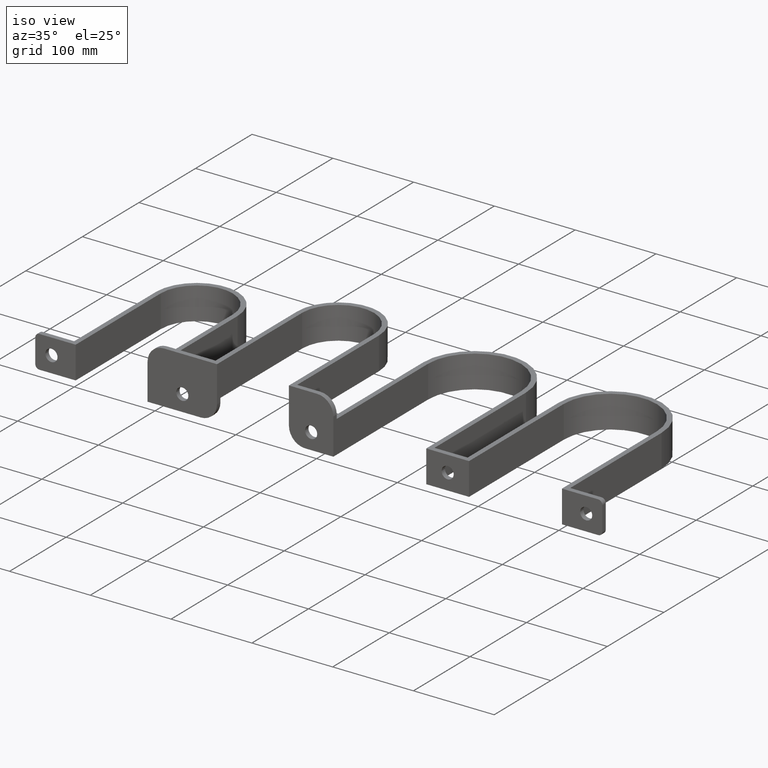
[diagram: clean part render]
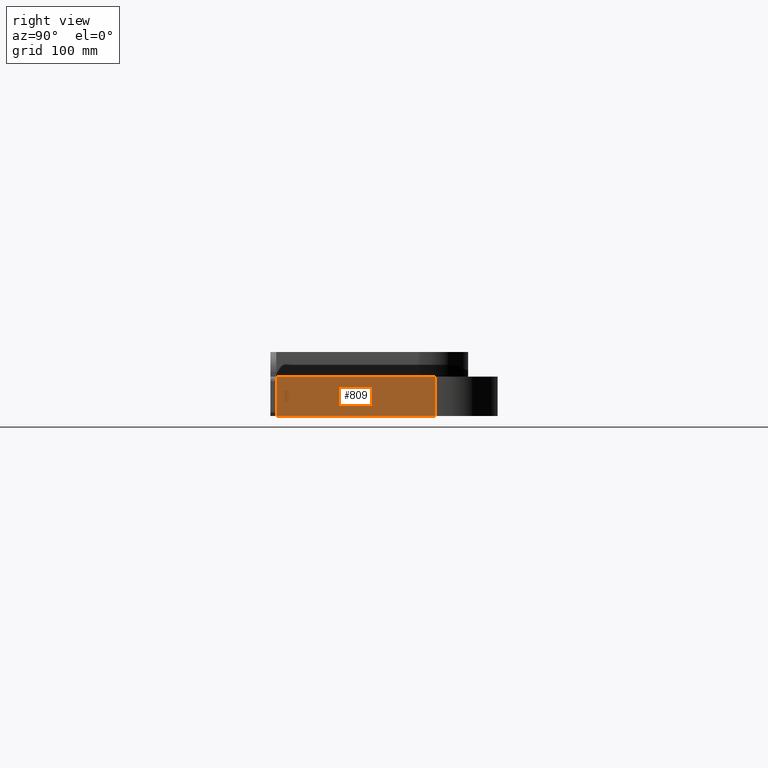
[diagram: tour spotlight — one face highlighted and labeled with its STEP entity id]
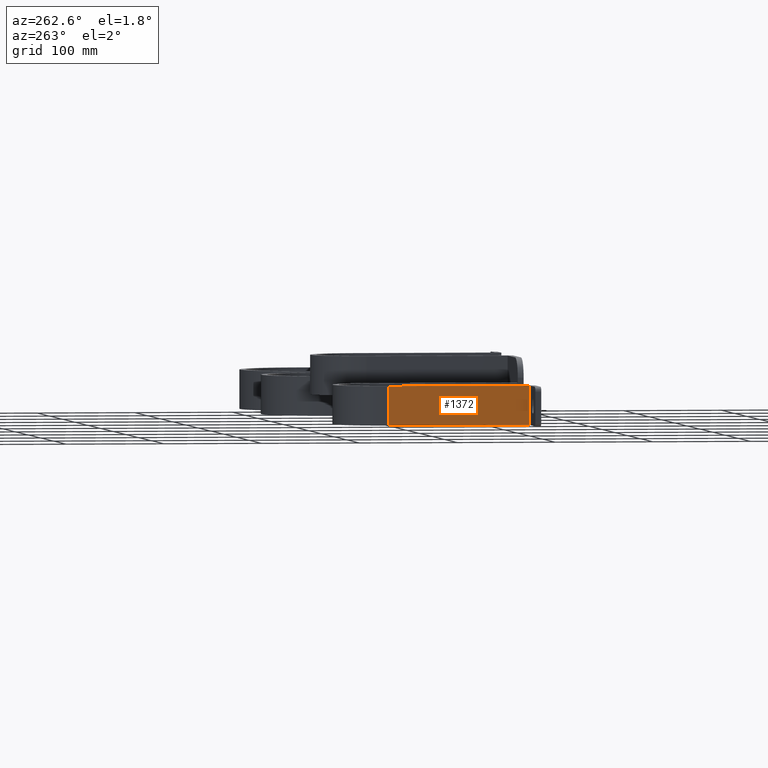
[diagram: tour spotlight — one face highlighted and labeled with its STEP entity id]
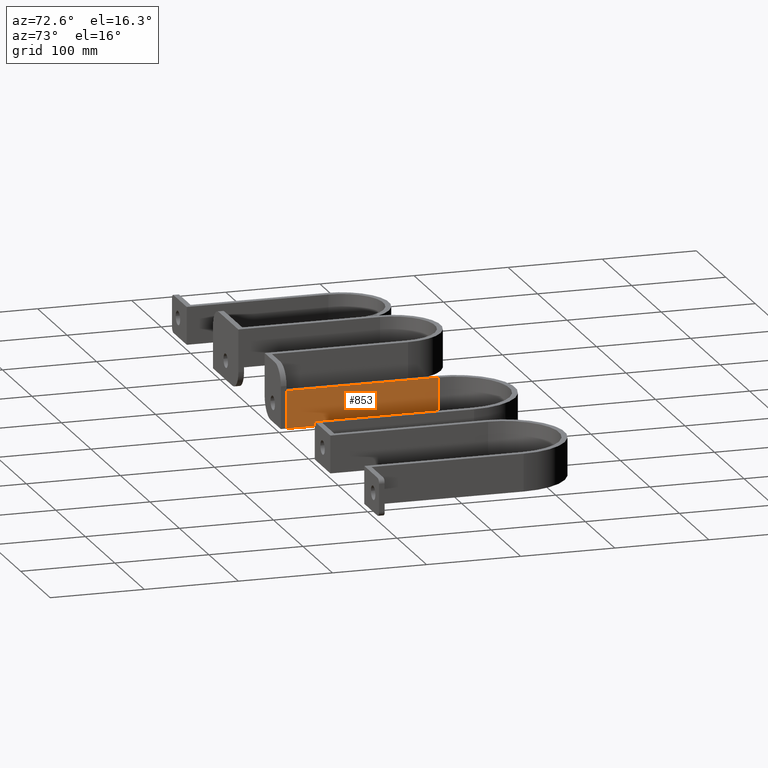
[diagram: tour spotlight — one face highlighted and labeled with its STEP entity id]
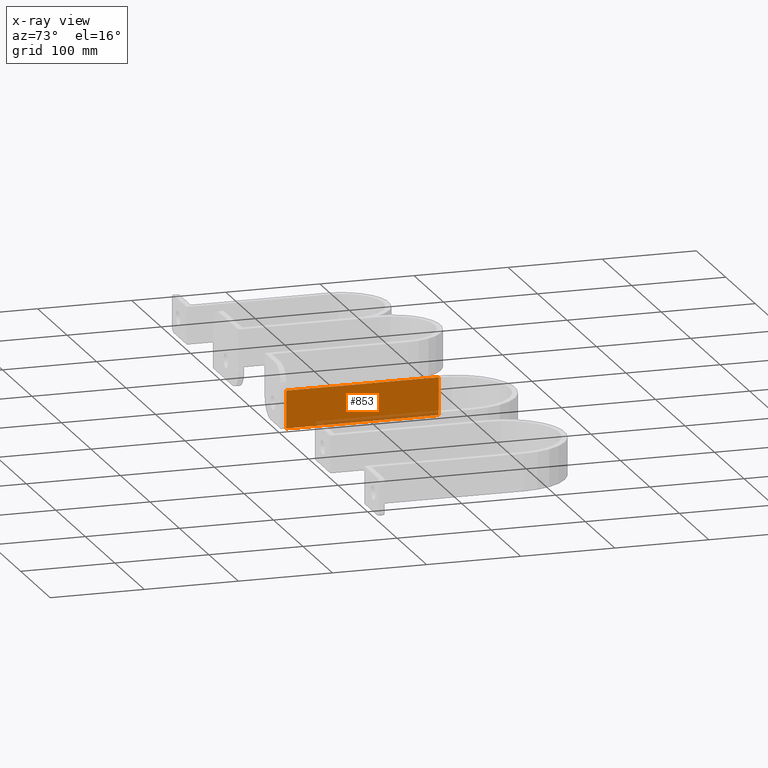
[diagram: x-ray of the same camera — body ghosted, this tour face saturated]
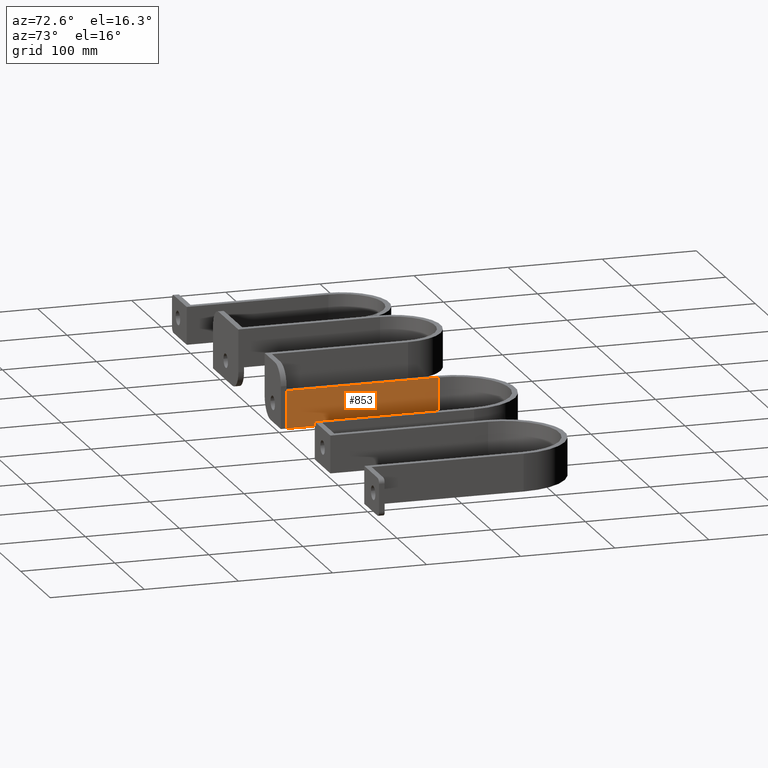
[diagram: tour spotlight — one face highlighted and labeled with its STEP entity id]
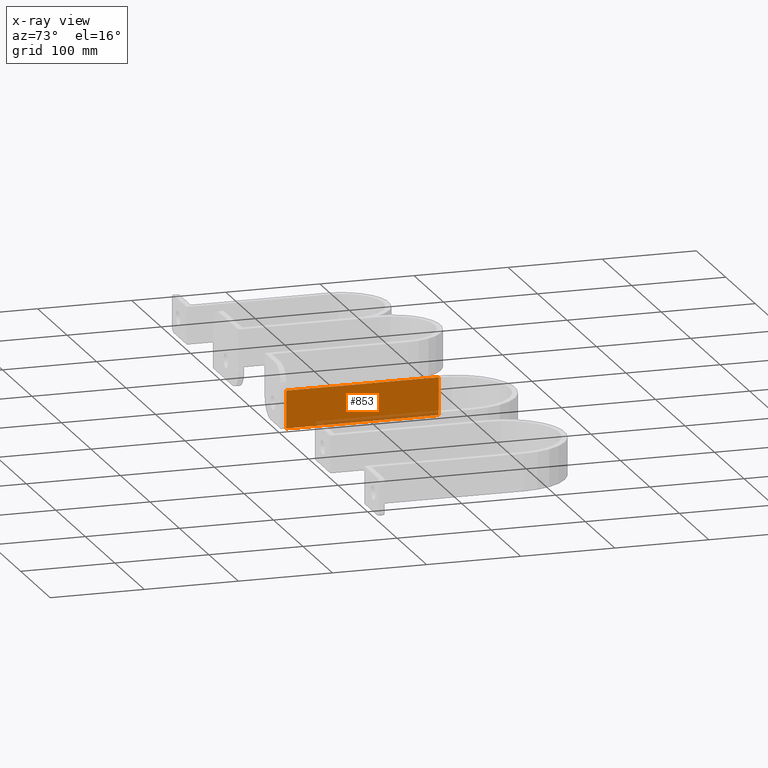
[diagram: x-ray of the same camera — body ghosted, this tour face saturated]
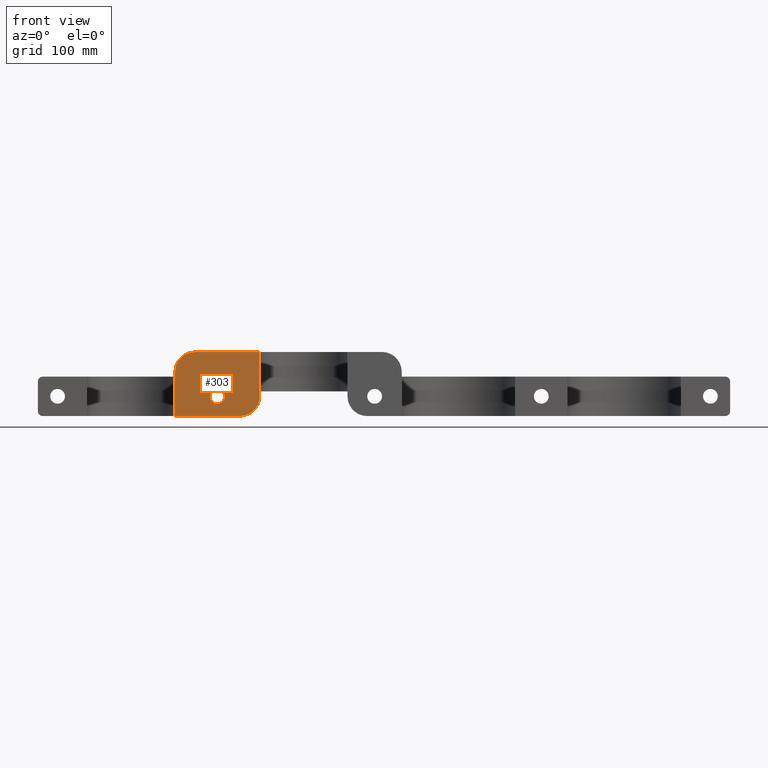
[diagram: tour spotlight — one face highlighted and labeled with its STEP entity id]
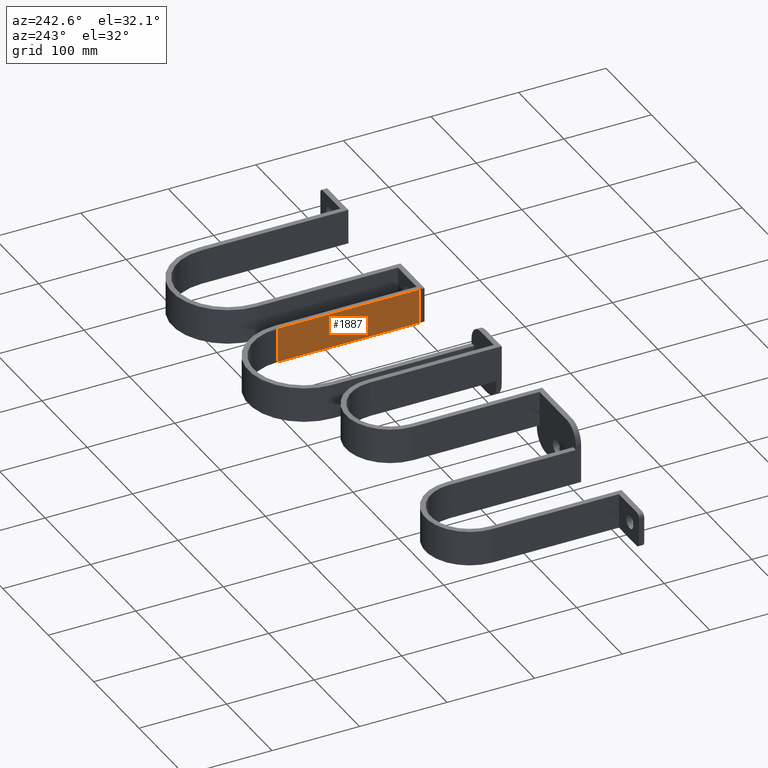
[diagram: tour spotlight — one face highlighted and labeled with its STEP entity id]
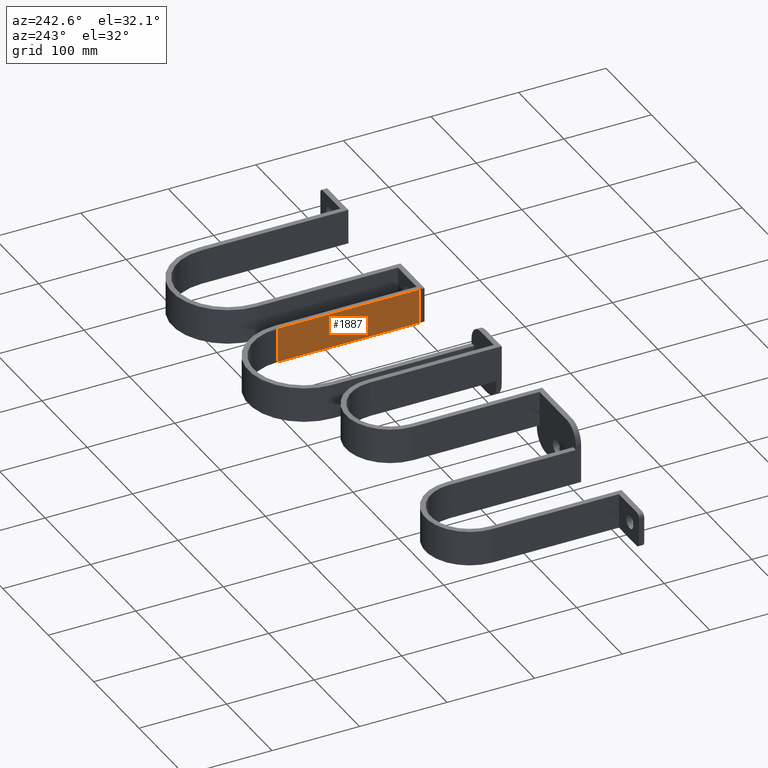
[diagram: tour spotlight — one face highlighted and labeled with its STEP entity id]
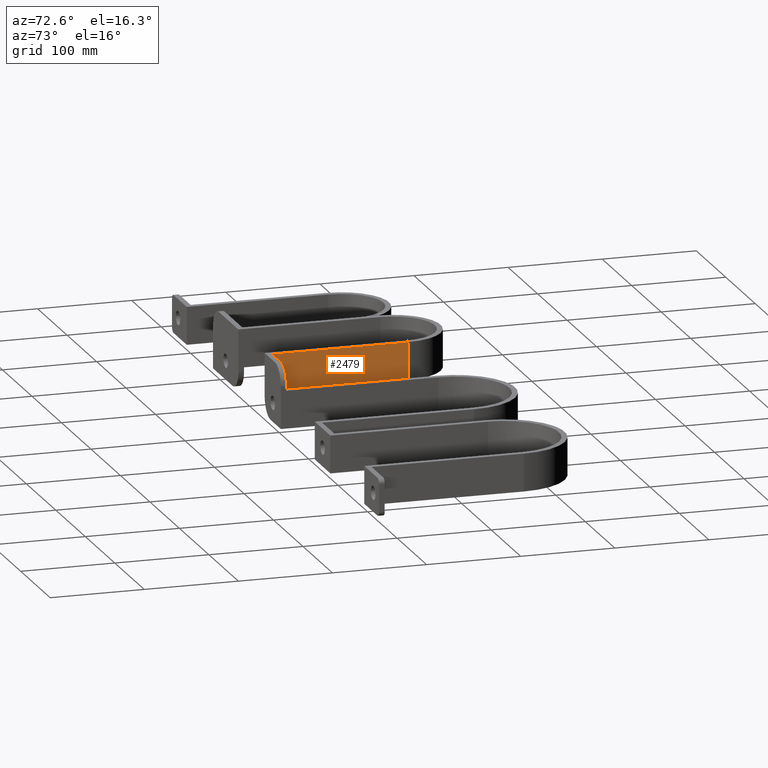
[diagram: tour spotlight — one face highlighted and labeled with its STEP entity id]
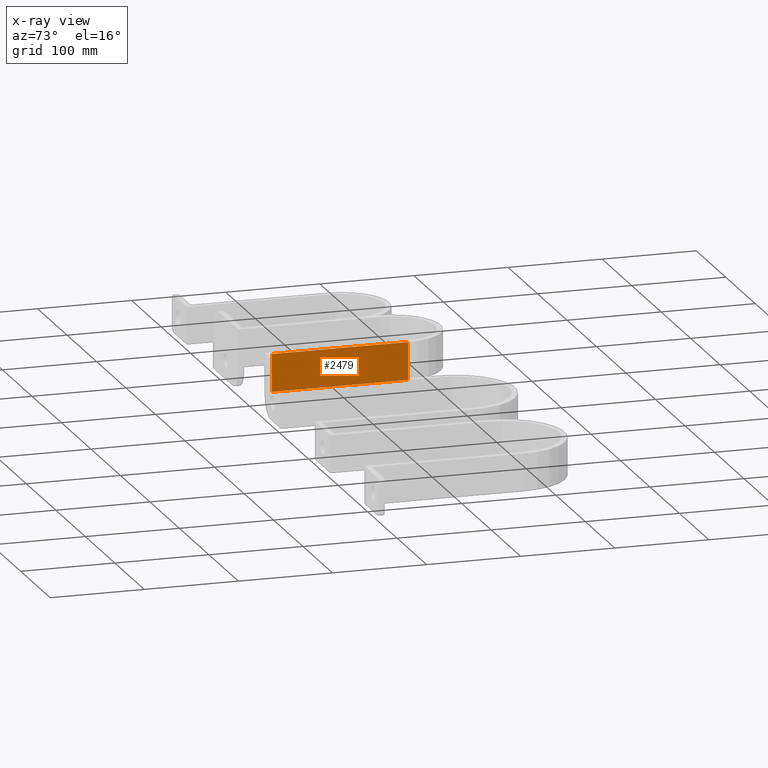
[diagram: x-ray of the same camera — body ghosted, this tour face saturated]
A machine part: a face-by-face anatomy tour. The part has 104 B-rep faces; the first image is the clean iso view, then the 8 largest visible faces are spotlighted one at a time (largest first), each with its STEP entity span.

Face 1 — right view, entity #809. In plain terms, the highlighted planar face has unit normal (1, 0, 0).
Definition (entity closure, byte-faithful):
#30 = CARTESIAN_POINT ( 'NONE',  ( 63.50000000000001421, 5.999999999999977796, 20.00000000000000000 ) ) ;
#70 = CARTESIAN_POINT ( 'NONE',  ( 63.50000000000001421, 167.4999999999999716, 20.00000000000000000 ) ) ;
#159 = VERTEX_POINT ( 'NONE', #30 ) ;
#161 = EDGE_CURVE ( 'NONE', #2232, #1912, #1258, .T. ) ;
#185 = DIRECTION ( 'NONE',  ( -0.000000000000000000, -0.000000000000000000, -1.000000000000000000 ) ) ;
#245 = DIRECTION ( 'NONE',  ( 1.000000000000000000, 0.000000000000000000, -0.000000000000000000 ) ) ;
#266 = DIRECTION ( 'NONE',  ( -0.000000000000000000, 0.000000000000000000, -1.000000000000000000 ) ) ;
#505 = CARTESIAN_POINT ( 'NONE',  ( 63.50000000000001421, 167.4999999999999716, -20.00000000000000000 ) ) ;
#549 = LINE ( 'NONE', #2039, #1361 ) ;
#637 = CARTESIAN_POINT ( 'NONE',  ( 63.50000000000001421, 167.4999999999999716, -20.00000000000000000 ) ) ;
#659 = ORIENTED_EDGE ( 'NONE', *, *, #1473, .F. ) ;
#809 = ADVANCED_FACE ( 'NONE', ( #2114 ), #1329, .T. ) ;
#1148 = VECTOR ( 'NONE', #185, 1000.000000000000000 ) ;
#1207 = CARTESIAN_POINT ( 'NONE',  ( 63.50000000000001421, 167.4999999999999716, 20.00000000000000000 ) ) ;
#1258 = LINE ( 'NONE', #637, #1809 ) ;
#1329 = PLANE ( 'NONE',  #2661 ) ;
#1330 = ORIENTED_EDGE ( 'NONE', *, *, #1430, .T. ) ;
#1361 = VECTOR ( 'NONE', #1626, 1000.000000000000000 ) ;
#1400 = LINE ( 'NONE', #1207, #1148 ) ;
#1430 = EDGE_CURVE ( 'NONE', #2361, #159, #549, .T. ) ;
#1473 = EDGE_CURVE ( 'NONE', #2361, #2232, #1400, .T. ) ;
#1517 = ORIENTED_EDGE ( 'NONE', *, *, #161, .F. ) ;
#1587 = VECTOR ( 'NONE', #1657, 1000.000000000000000 ) ;
#1626 = DIRECTION ( 'NONE',  ( -0.000000000000000000, -1.000000000000000000, 0.000000000000000000 ) ) ;
#1657 = DIRECTION ( 'NONE',  ( -0.000000000000000000, -0.000000000000000000, -1.000000000000000000 ) ) ;
#1696 = DIRECTION ( 'NONE',  ( -0.000000000000000000, -1.000000000000000000, 0.000000000000000000 ) ) ;
#1809 = VECTOR ( 'NONE', #1696, 1000.000000000000000 ) ;
#1858 = CARTESIAN_POINT ( 'NONE',  ( 63.50000000000001421, 167.4999999999999716, 20.00000000000000000 ) ) ;
#1912 = VERTEX_POINT ( 'NONE', #2159 ) ;
#1930 = EDGE_CURVE ( 'NONE', #159, #1912, #2539, .T. ) ;
#1964 = ORIENTED_EDGE ( 'NONE', *, *, #1930, .T. ) ;
#2039 = CARTESIAN_POINT ( 'NONE',  ( 63.50000000000001421, 167.4999999999999716, 20.00000000000000000 ) ) ;
#2114 = FACE_OUTER_BOUND ( 'NONE', #2474, .T. ) ;
#2159 = CARTESIAN_POINT ( 'NONE',  ( 63.50000000000001421, 5.999999999999977796, -20.00000000000000000 ) ) ;
#2232 = VERTEX_POINT ( 'NONE', #505 ) ;
#2261 = CARTESIAN_POINT ( 'NONE',  ( 63.50000000000001421, 5.999999999999977796, 20.00000000000000000 ) ) ;
#2361 = VERTEX_POINT ( 'NONE', #1858 ) ;
#2474 = EDGE_LOOP ( 'NONE', ( #1517, #659, #1330, #1964 ) ) ;
#2539 = LINE ( 'NONE', #2261, #1587 ) ;
#2661 = AXIS2_PLACEMENT_3D ( 'NONE', #70, #245, #266 ) ;

Face 2 — auxiliary view, entity #1372. In plain terms, the highlighted planar face has unit normal (-1, 0, 0).
Definition (entity closure, byte-faithful):
#37 = ORIENTED_EDGE ( 'NONE', *, *, #922, .T. ) ;
#40 = CARTESIAN_POINT ( 'NONE',  ( -50.49999999999999289, 5.999999999999985789, -20.00000000000000000 ) ) ;
#62 = LINE ( 'NONE', #40, #1724 ) ;
#272 = DIRECTION ( 'NONE',  ( -1.000000000000000000, -0.000000000000000000, 0.000000000000000000 ) ) ;
#276 = EDGE_CURVE ( 'NONE', #1532, #1671, #842, .T. ) ;
#404 = VECTOR ( 'NONE', #2420, 1000.000000000000000 ) ;
#416 = DIRECTION ( 'NONE',  ( -0.000000000000000000, -0.000000000000000000, -1.000000000000000000 ) ) ;
#493 = VECTOR ( 'NONE', #416, 1000.000000000000000 ) ;
#504 = CARTESIAN_POINT ( 'NONE',  ( -50.49999999999999289, 5.999999999999985789, 20.00000000000000000 ) ) ;
#600 = CARTESIAN_POINT ( 'NONE',  ( -50.49999999999999289, 5.999999999999985789, 20.00000000000000000 ) ) ;
#777 = ORIENTED_EDGE ( 'NONE', *, *, #2170, .T. ) ;
#830 = PLANE ( 'NONE',  #2399 ) ;
#839 = VECTOR ( 'NONE', #2141, 1000.000000000000000 ) ;
#842 = LINE ( 'NONE', #1684, #493 ) ;
#922 = EDGE_CURVE ( 'NONE', #1532, #2486, #1929, .T. ) ;
#1050 = EDGE_CURVE ( 'NONE', #1671, #1923, #62, .T. ) ;
#1372 = ADVANCED_FACE ( 'NONE', ( #1436 ), #830, .T. ) ;
#1396 = LINE ( 'NONE', #1623, #404 ) ;
#1436 = FACE_OUTER_BOUND ( 'NONE', #2577, .T. ) ;
#1470 = CARTESIAN_POINT ( 'NONE',  ( -50.49999999999999289, 150.5000000000000284, 20.00000000000000000 ) ) ;
#1484 = CARTESIAN_POINT ( 'NONE',  ( -50.49999999999999289, 5.999999999999985789, 20.00000000000000000 ) ) ;
#1532 = VERTEX_POINT ( 'NONE', #1484 ) ;
#1619 = CARTESIAN_POINT ( 'NONE',  ( -50.49999999999999289, 5.999999999999985789, -20.00000000000000000 ) ) ;
#1623 = CARTESIAN_POINT ( 'NONE',  ( -50.49999999999999289, 150.5000000000000284, 20.00000000000000000 ) ) ;
#1671 = VERTEX_POINT ( 'NONE', #1619 ) ;
#1684 = CARTESIAN_POINT ( 'NONE',  ( -50.49999999999999289, 5.999999999999985789, 20.00000000000000000 ) ) ;
#1692 = ORIENTED_EDGE ( 'NONE', *, *, #276, .F. ) ;
#1724 = VECTOR ( 'NONE', #2555, 1000.000000000000000 ) ;
#1923 = VERTEX_POINT ( 'NONE', #2533 ) ;
#1929 = LINE ( 'NONE', #504, #839 ) ;
#2018 = ORIENTED_EDGE ( 'NONE', *, *, #1050, .F. ) ;
#2141 = DIRECTION ( 'NONE',  ( -0.000000000000000000, 1.000000000000000000, 0.000000000000000000 ) ) ;
#2170 = EDGE_CURVE ( 'NONE', #2486, #1923, #1396, .T. ) ;
#2258 = DIRECTION ( 'NONE',  ( 0.000000000000000000, 0.000000000000000000, 1.000000000000000000 ) ) ;
#2399 = AXIS2_PLACEMENT_3D ( 'NONE', #600, #272, #2258 ) ;
#2420 = DIRECTION ( 'NONE',  ( -0.000000000000000000, -0.000000000000000000, -1.000000000000000000 ) ) ;
#2486 = VERTEX_POINT ( 'NONE', #1470 ) ;
#2533 = CARTESIAN_POINT ( 'NONE',  ( -50.49999999999999289, 150.5000000000000284, -20.00000000000000000 ) ) ;
#2555 = DIRECTION ( 'NONE',  ( -0.000000000000000000, 1.000000000000000000, 0.000000000000000000 ) ) ;
#2577 = EDGE_LOOP ( 'NONE', ( #2018, #1692, #37, #777 ) ) ;

Face 3 — auxiliary view, entity #853. An x-ray twin of the same camera follows (body ghosted, this face saturated) — the face is partly hidden behind the body. In plain terms, the highlighted planar face has unit normal (-1, 0, 0).
Definition (entity closure, byte-faithful):
#92 = ORIENTED_EDGE ( 'NONE', *, *, #2556, .F. ) ;
#99 = VERTEX_POINT ( 'NONE', #1691 ) ;
#151 = LINE ( 'NONE', #1690, #2109 ) ;
#242 = VECTOR ( 'NONE', #2103, 1000.000000000000000 ) ;
#327 = PLANE ( 'NONE',  #1443 ) ;
#408 = LINE ( 'NONE', #1252, #671 ) ;
#654 = CARTESIAN_POINT ( 'NONE',  ( -57.50000000000000711, 167.4999999999999716, 20.00000000000000000 ) ) ;
#671 = VECTOR ( 'NONE', #1040, 1000.000000000000000 ) ;
#683 = VERTEX_POINT ( 'NONE', #654 ) ;
#735 = ORIENTED_EDGE ( 'NONE', *, *, #2651, .F. ) ;
#835 = CARTESIAN_POINT ( 'NONE',  ( -57.50000000000000711, 5.999999999999970690, 20.00000000000000000 ) ) ;
#853 = ADVANCED_FACE ( 'NONE', ( #1630 ), #327, .F. ) ;
#994 = CARTESIAN_POINT ( 'NONE',  ( -57.50000000000000711, 167.4999999999999716, -20.00000000000000000 ) ) ;
#1040 = DIRECTION ( 'NONE',  ( -0.000000000000000000, -0.000000000000000000, -1.000000000000000000 ) ) ;
#1223 = EDGE_CURVE ( 'NONE', #1900, #2547, #151, .T. ) ;
#1252 = CARTESIAN_POINT ( 'NONE',  ( -57.50000000000000711, 5.999999999999970690, 20.00000000000000000 ) ) ;
#1266 = DIRECTION ( 'NONE',  ( 0.000000000000000000, 0.000000000000000000, 1.000000000000000000 ) ) ;
#1301 = EDGE_LOOP ( 'NONE', ( #2512, #735, #92, #2038 ) ) ;
#1339 = EDGE_CURVE ( 'NONE', #99, #1900, #408, .T. ) ;
#1442 = DIRECTION ( 'NONE',  ( 0.000000000000000000, 1.000000000000000000, 0.000000000000000000 ) ) ;
#1443 = AXIS2_PLACEMENT_3D ( 'NONE', #835, #1673, #1266 ) ;
#1452 = LINE ( 'NONE', #1636, #1859 ) ;
#1630 = FACE_OUTER_BOUND ( 'NONE', #1301, .T. ) ;
#1636 = CARTESIAN_POINT ( 'NONE',  ( -57.50000000000000711, 5.999999999999970690, 20.00000000000000000 ) ) ;
#1673 = DIRECTION ( 'NONE',  ( -1.000000000000000000, 0.000000000000000000, 0.000000000000000000 ) ) ;
#1690 = CARTESIAN_POINT ( 'NONE',  ( -57.50000000000000711, 5.999999999999970690, -20.00000000000000000 ) ) ;
#1691 = CARTESIAN_POINT ( 'NONE',  ( -57.50000000000000711, 5.999999999999970690, 20.00000000000000000 ) ) ;
#1859 = VECTOR ( 'NONE', #2459, 1000.000000000000000 ) ;
#1900 = VERTEX_POINT ( 'NONE', #2234 ) ;
#2038 = ORIENTED_EDGE ( 'NONE', *, *, #1339, .T. ) ;
#2103 = DIRECTION ( 'NONE',  ( -0.000000000000000000, -0.000000000000000000, -1.000000000000000000 ) ) ;
#2109 = VECTOR ( 'NONE', #1442, 1000.000000000000000 ) ;
#2234 = CARTESIAN_POINT ( 'NONE',  ( -57.50000000000000711, 5.999999999999970690, -20.00000000000000000 ) ) ;
#2314 = CARTESIAN_POINT ( 'NONE',  ( -57.50000000000000711, 167.4999999999999716, 20.00000000000000000 ) ) ;
#2459 = DIRECTION ( 'NONE',  ( 0.000000000000000000, 1.000000000000000000, 0.000000000000000000 ) ) ;
#2512 = ORIENTED_EDGE ( 'NONE', *, *, #1223, .T. ) ;
#2547 = VERTEX_POINT ( 'NONE', #994 ) ;
#2556 = EDGE_CURVE ( 'NONE', #99, #683, #1452, .T. ) ;
#2605 = LINE ( 'NONE', #2314, #242 ) ;
#2651 = EDGE_CURVE ( 'NONE', #683, #2547, #2605, .T. ) ;

Face 4 — auxiliary view, entity #853. An x-ray twin of the same camera follows (body ghosted, this face saturated) — the face is partly hidden behind the body. In plain terms, the highlighted planar face has unit normal (-1, 0, 0).
Definition (entity closure, byte-faithful):
#92 = ORIENTED_EDGE ( 'NONE', *, *, #2556, .F. ) ;
#99 = VERTEX_POINT ( 'NONE', #1691 ) ;
#151 = LINE ( 'NONE', #1690, #2109 ) ;
#242 = VECTOR ( 'NONE', #2103, 1000.000000000000000 ) ;
#327 = PLANE ( 'NONE',  #1443 ) ;
#408 = LINE ( 'NONE', #1252, #671 ) ;
#654 = CARTESIAN_POINT ( 'NONE',  ( -57.50000000000000711, 167.4999999999999716, 20.00000000000000000 ) ) ;
#671 = VECTOR ( 'NONE', #1040, 1000.000000000000000 ) ;
#683 = VERTEX_POINT ( 'NONE', #654 ) ;
#735 = ORIENTED_EDGE ( 'NONE', *, *, #2651, .F. ) ;
#835 = CARTESIAN_POINT ( 'NONE',  ( -57.50000000000000711, 5.999999999999970690, 20.00000000000000000 ) ) ;
#853 = ADVANCED_FACE ( 'NONE', ( #1630 ), #327, .F. ) ;
#994 = CARTESIAN_POINT ( 'NONE',  ( -57.50000000000000711, 167.4999999999999716, -20.00000000000000000 ) ) ;
#1040 = DIRECTION ( 'NONE',  ( -0.000000000000000000, -0.000000000000000000, -1.000000000000000000 ) ) ;
#1223 = EDGE_CURVE ( 'NONE', #1900, #2547, #151, .T. ) ;
#1252 = CARTESIAN_POINT ( 'NONE',  ( -57.50000000000000711, 5.999999999999970690, 20.00000000000000000 ) ) ;
#1266 = DIRECTION ( 'NONE',  ( 0.000000000000000000, 0.000000000000000000, 1.000000000000000000 ) ) ;
#1301 = EDGE_LOOP ( 'NONE', ( #2512, #735, #92, #2038 ) ) ;
#1339 = EDGE_CURVE ( 'NONE', #99, #1900, #408, .T. ) ;
#1442 = DIRECTION ( 'NONE',  ( 0.000000000000000000, 1.000000000000000000, 0.000000000000000000 ) ) ;
#1443 = AXIS2_PLACEMENT_3D ( 'NONE', #835, #1673, #1266 ) ;
#1452 = LINE ( 'NONE', #1636, #1859 ) ;
#1630 = FACE_OUTER_BOUND ( 'NONE', #1301, .T. ) ;
#1636 = CARTESIAN_POINT ( 'NONE',  ( -57.50000000000000711, 5.999999999999970690, 20.00000000000000000 ) ) ;
#1673 = DIRECTION ( 'NONE',  ( -1.000000000000000000, 0.000000000000000000, 0.000000000000000000 ) ) ;
#1690 = CARTESIAN_POINT ( 'NONE',  ( -57.50000000000000711, 5.999999999999970690, -20.00000000000000000 ) ) ;
#1691 = CARTESIAN_POINT ( 'NONE',  ( -57.50000000000000711, 5.999999999999970690, 20.00000000000000000 ) ) ;
#1859 = VECTOR ( 'NONE', #2459, 1000.000000000000000 ) ;
#1900 = VERTEX_POINT ( 'NONE', #2234 ) ;
#2038 = ORIENTED_EDGE ( 'NONE', *, *, #1339, .T. ) ;
#2103 = DIRECTION ( 'NONE',  ( -0.000000000000000000, -0.000000000000000000, -1.000000000000000000 ) ) ;
#2109 = VECTOR ( 'NONE', #1442, 1000.000000000000000 ) ;
#2234 = CARTESIAN_POINT ( 'NONE',  ( -57.50000000000000711, 5.999999999999970690, -20.00000000000000000 ) ) ;
#2314 = CARTESIAN_POINT ( 'NONE',  ( -57.50000000000000711, 167.4999999999999716, 20.00000000000000000 ) ) ;
#2459 = DIRECTION ( 'NONE',  ( 0.000000000000000000, 1.000000000000000000, 0.000000000000000000 ) ) ;
#2512 = ORIENTED_EDGE ( 'NONE', *, *, #1223, .T. ) ;
#2547 = VERTEX_POINT ( 'NONE', #994 ) ;
#2556 = EDGE_CURVE ( 'NONE', #99, #683, #1452, .T. ) ;
#2605 = LINE ( 'NONE', #2314, #242 ) ;
#2651 = EDGE_CURVE ( 'NONE', #683, #2547, #2605, .T. ) ;

Face 5 — front view, entity #303. In plain terms, the highlighted planar face has unit normal (0, 1, 0).
Definition (entity closure, byte-faithful):
#17 = CARTESIAN_POINT ( 'NONE',  ( -86.00000000000000000, -1.040949779275250021E-14, -6.000000000000000000 ) ) ;
#77 = EDGE_CURVE ( 'NONE', #481, #2644, #663, .T. ) ;
#80 = EDGE_CURVE ( 'NONE', #2640, #1589, #2064, .T. ) ;
#95 = DIRECTION ( 'NONE',  ( 1.000000000000000000, 0.000000000000000000, 0.000000000000000000 ) ) ;
#110 = CARTESIAN_POINT ( 'NONE',  ( -86.00000000000000000, 64.99999999999998579, -6.000000000000000000 ) ) ;
#115 = DIRECTION ( 'NONE',  ( 1.000000000000000000, 0.000000000000000000, 0.000000000000000000 ) ) ;
#125 = ORIENTED_EDGE ( 'NONE', *, *, #77, .T. ) ;
#167 = FACE_BOUND ( 'NONE', #2274, .T. ) ;
#190 = DIRECTION ( 'NONE',  ( -0.000000000000000000, 0.000000000000000000, -1.000000000000000000 ) ) ;
#244 = CARTESIAN_POINT ( 'NONE',  ( -20.00000000000000000, 64.99999999999998579, -6.000000000000000000 ) ) ;
#303 = ADVANCED_FACE ( 'NONE', ( #167, #1044 ), #2087, .F. ) ;
#362 = ORIENTED_EDGE ( 'NONE', *, *, #702, .F. ) ;
#363 = CARTESIAN_POINT ( 'NONE',  ( 0.000000000000000000, 0.000000000000000000, -6.000000000000000000 ) ) ;
#418 = CARTESIAN_POINT ( 'NONE',  ( 0.000000000000000000, 0.000000000000000000, -6.000000000000000000 ) ) ;
#433 = EDGE_CURVE ( 'NONE', #2640, #873, #714, .T. ) ;
#481 = VERTEX_POINT ( 'NONE', #244 ) ;
#521 = CARTESIAN_POINT ( 'NONE',  ( -65.99999999999998579, 19.99999999999999289, -6.000000000000000000 ) ) ;
#532 = EDGE_LOOP ( 'NONE', ( #2169, #125, #2569, #2589, #1006, #362 ) ) ;
#537 = VECTOR ( 'NONE', #1938, 1000.000000000000000 ) ;
#545 = AXIS2_PLACEMENT_3D ( 'NONE', #941, #1792, #743 ) ;
#624 = AXIS2_PLACEMENT_3D ( 'NONE', #956, #2618, #95 ) ;
#639 = CARTESIAN_POINT ( 'NONE',  ( -35.50000000000000000, 44.99999999999997868, -6.000000000000000000 ) ) ;
#661 = DIRECTION ( 'NONE',  ( 1.000000000000000000, 1.210406720087500283E-16, -0.000000000000000000 ) ) ;
#663 = CIRCLE ( 'NONE', #1173, 20.00000000000000000 ) ;
#702 = EDGE_CURVE ( 'NONE', #2632, #873, #2077, .T. ) ;
#714 = CIRCLE ( 'NONE', #1051, 20.00000000000000355 ) ;
#738 = CARTESIAN_POINT ( 'NONE',  ( 0.000000000000000000, 44.99999999999998579, -6.000000000000000000 ) ) ;
#743 = DIRECTION ( 'NONE',  ( 1.000000000000000000, 0.000000000000000000, 0.000000000000000000 ) ) ;
#745 = EDGE_CURVE ( 'NONE', #1589, #2644, #1114, .T. ) ;
#746 = VERTEX_POINT ( 'NONE', #639 ) ;
#749 = LINE ( 'NONE', #1271, #2582 ) ;
#792 = CARTESIAN_POINT ( 'NONE',  ( -50.49999999999999289, 44.99999999999997868, -6.000000000000000000 ) ) ;
#796 = ORIENTED_EDGE ( 'NONE', *, *, #2090, .T. ) ;
#873 = VERTEX_POINT ( 'NONE', #1925 ) ;
#879 = AXIS2_PLACEMENT_3D ( 'NONE', #363, #2483, #2055 ) ;
#929 = CIRCLE ( 'NONE', #624, 7.500000000000000000 ) ;
#941 = CARTESIAN_POINT ( 'NONE',  ( -43.00000000000000000, 44.99999999999997868, -6.000000000000000000 ) ) ;
#956 = CARTESIAN_POINT ( 'NONE',  ( -43.00000000000000000, 44.99999999999997868, -6.000000000000000000 ) ) ;
#1006 = ORIENTED_EDGE ( 'NONE', *, *, #433, .T. ) ;
#1012 = DIRECTION ( 'NONE',  ( 1.000000000000000000, 0.000000000000000000, 0.000000000000000000 ) ) ;
#1044 = FACE_OUTER_BOUND ( 'NONE', #532, .T. ) ;
#1051 = AXIS2_PLACEMENT_3D ( 'NONE', #521, #1567, #115 ) ;
#1114 = LINE ( 'NONE', #2137, #537 ) ;
#1140 = VECTOR ( 'NONE', #2289, 1000.000000000000000 ) ;
#1173 = AXIS2_PLACEMENT_3D ( 'NONE', #2262, #190, #1012 ) ;
#1271 = CARTESIAN_POINT ( 'NONE',  ( 0.000000000000000000, 64.99999999999998579, -6.000000000000000000 ) ) ;
#1567 = DIRECTION ( 'NONE',  ( -0.000000000000000000, 0.000000000000000000, -1.000000000000000000 ) ) ;
#1589 = VERTEX_POINT ( 'NONE', #418 ) ;
#1629 = CIRCLE ( 'NONE', #545, 7.500000000000000000 ) ;
#1712 = DIRECTION ( 'NONE',  ( -1.000000000000000000, 0.000000000000000000, 0.000000000000000000 ) ) ;
#1792 = DIRECTION ( 'NONE',  ( 0.000000000000000000, -0.000000000000000000, 1.000000000000000000 ) ) ;
#1865 = EDGE_CURVE ( 'NONE', #746, #2541, #1629, .T. ) ;
#1899 = CARTESIAN_POINT ( 'NONE',  ( 0.000000000000000000, 0.000000000000000000, -6.000000000000000000 ) ) ;
#1917 = ORIENTED_EDGE ( 'NONE', *, *, #1865, .T. ) ;
#1925 = CARTESIAN_POINT ( 'NONE',  ( -86.00000000000000000, 19.99999999999999289, -6.000000000000000000 ) ) ;
#1938 = DIRECTION ( 'NONE',  ( 0.000000000000000000, 1.000000000000000000, 0.000000000000000000 ) ) ;
#2055 = DIRECTION ( 'NONE',  ( 1.000000000000000000, 0.000000000000000000, -0.000000000000000000 ) ) ;
#2064 = LINE ( 'NONE', #1899, #2181 ) ;
#2077 = LINE ( 'NONE', #17, #1140 ) ;
#2087 = PLANE ( 'NONE',  #879 ) ;
#2090 = EDGE_CURVE ( 'NONE', #2541, #746, #929, .T. ) ;
#2131 = CARTESIAN_POINT ( 'NONE',  ( -65.99999999999998579, -7.988684352577499945E-15, -6.000000000000000000 ) ) ;
#2137 = CARTESIAN_POINT ( 'NONE',  ( 0.000000000000000000, 0.000000000000000000, -6.000000000000000000 ) ) ;
#2169 = ORIENTED_EDGE ( 'NONE', *, *, #2601, .F. ) ;
#2181 = VECTOR ( 'NONE', #661, 1000.000000000000000 ) ;
#2262 = CARTESIAN_POINT ( 'NONE',  ( -20.00000000000000000, 44.99999999999998579, -6.000000000000000000 ) ) ;
#2274 = EDGE_LOOP ( 'NONE', ( #1917, #796 ) ) ;
#2289 = DIRECTION ( 'NONE',  ( -0.000000000000000000, -1.000000000000000000, -0.000000000000000000 ) ) ;
#2483 = DIRECTION ( 'NONE',  ( 0.000000000000000000, -0.000000000000000000, 1.000000000000000000 ) ) ;
#2541 = VERTEX_POINT ( 'NONE', #792 ) ;
#2569 = ORIENTED_EDGE ( 'NONE', *, *, #745, .F. ) ;
#2582 = VECTOR ( 'NONE', #1712, 1000.000000000000000 ) ;
#2589 = ORIENTED_EDGE ( 'NONE', *, *, #80, .F. ) ;
#2601 = EDGE_CURVE ( 'NONE', #481, #2632, #749, .T. ) ;
#2618 = DIRECTION ( 'NONE',  ( 0.000000000000000000, -0.000000000000000000, 1.000000000000000000 ) ) ;
#2632 = VERTEX_POINT ( 'NONE', #110 ) ;
#2640 = VERTEX_POINT ( 'NONE', #2131 ) ;
#2644 = VERTEX_POINT ( 'NONE', #738 ) ;

Face 6 — auxiliary view, entity #1887. In plain terms, the highlighted planar face has unit normal (1, 0, 0).
Definition (entity closure, byte-faithful):
#69 = VECTOR ( 'NONE', #1486, 1000.000000000000000 ) ;
#157 = VECTOR ( 'NONE', #690, 1000.000000000000000 ) ;
#212 = CARTESIAN_POINT ( 'NONE',  ( 57.50000000000000711, 167.4999999999999716, 20.00000000000000000 ) ) ;
#258 = CARTESIAN_POINT ( 'NONE',  ( 57.50000000000000711, 167.4999999999999716, -20.00000000000000000 ) ) ;
#399 = ORIENTED_EDGE ( 'NONE', *, *, #1919, .F. ) ;
#550 = FACE_OUTER_BOUND ( 'NONE', #1420, .T. ) ;
#565 = VERTEX_POINT ( 'NONE', #1565 ) ;
#655 = CARTESIAN_POINT ( 'NONE',  ( 57.50000000000000711, 167.4999999999999716, 20.00000000000000000 ) ) ;
#666 = DIRECTION ( 'NONE',  ( 0.000000000000000000, -1.000000000000000000, 0.000000000000000000 ) ) ;
#690 = DIRECTION ( 'NONE',  ( -0.000000000000000000, -0.000000000000000000, -1.000000000000000000 ) ) ;
#917 = EDGE_CURVE ( 'NONE', #919, #1850, #2566, .T. ) ;
#919 = VERTEX_POINT ( 'NONE', #258 ) ;
#931 = ORIENTED_EDGE ( 'NONE', *, *, #2607, .F. ) ;
#951 = CARTESIAN_POINT ( 'NONE',  ( 57.50000000000000711, 5.999999999999970690, -20.00000000000000000 ) ) ;
#983 = ORIENTED_EDGE ( 'NONE', *, *, #917, .T. ) ;
#1165 = DIRECTION ( 'NONE',  ( 1.000000000000000000, 0.000000000000000000, -0.000000000000000000 ) ) ;
#1336 = CARTESIAN_POINT ( 'NONE',  ( 57.50000000000000711, 5.999999999999970690, 20.00000000000000000 ) ) ;
#1377 = PLANE ( 'NONE',  #2233 ) ;
#1420 = EDGE_LOOP ( 'NONE', ( #983, #931, #399, #2458 ) ) ;
#1486 = DIRECTION ( 'NONE',  ( 0.000000000000000000, -1.000000000000000000, 0.000000000000000000 ) ) ;
#1499 = CARTESIAN_POINT ( 'NONE',  ( 57.50000000000000711, 5.999999999999970690, 20.00000000000000000 ) ) ;
#1565 = CARTESIAN_POINT ( 'NONE',  ( 57.50000000000000711, 167.4999999999999716, 20.00000000000000000 ) ) ;
#1579 = LINE ( 'NONE', #1499, #157 ) ;
#1622 = DIRECTION ( 'NONE',  ( -0.000000000000000000, -0.000000000000000000, -1.000000000000000000 ) ) ;
#1700 = LINE ( 'NONE', #655, #69 ) ;
#1824 = VERTEX_POINT ( 'NONE', #1336 ) ;
#1834 = LINE ( 'NONE', #212, #2500 ) ;
#1850 = VERTEX_POINT ( 'NONE', #951 ) ;
#1887 = ADVANCED_FACE ( 'NONE', ( #550 ), #1377, .F. ) ;
#1919 = EDGE_CURVE ( 'NONE', #565, #1824, #1700, .T. ) ;
#2014 = DIRECTION ( 'NONE',  ( -0.000000000000000000, 0.000000000000000000, -1.000000000000000000 ) ) ;
#2151 = CARTESIAN_POINT ( 'NONE',  ( 57.50000000000000711, 167.4999999999999716, -20.00000000000000000 ) ) ;
#2213 = CARTESIAN_POINT ( 'NONE',  ( 57.50000000000000711, 167.4999999999999716, 20.00000000000000000 ) ) ;
#2233 = AXIS2_PLACEMENT_3D ( 'NONE', #2213, #1165, #2014 ) ;
#2458 = ORIENTED_EDGE ( 'NONE', *, *, #2560, .T. ) ;
#2500 = VECTOR ( 'NONE', #1622, 1000.000000000000000 ) ;
#2534 = VECTOR ( 'NONE', #666, 1000.000000000000000 ) ;
#2560 = EDGE_CURVE ( 'NONE', #565, #919, #1834, .T. ) ;
#2566 = LINE ( 'NONE', #2151, #2534 ) ;
#2607 = EDGE_CURVE ( 'NONE', #1824, #1850, #1579, .T. ) ;

Face 7 — auxiliary view, entity #1887. In plain terms, the highlighted planar face has unit normal (1, 0, 0).
Definition (entity closure, byte-faithful):
#69 = VECTOR ( 'NONE', #1486, 1000.000000000000000 ) ;
#157 = VECTOR ( 'NONE', #690, 1000.000000000000000 ) ;
#212 = CARTESIAN_POINT ( 'NONE',  ( 57.50000000000000711, 167.4999999999999716, 20.00000000000000000 ) ) ;
#258 = CARTESIAN_POINT ( 'NONE',  ( 57.50000000000000711, 167.4999999999999716, -20.00000000000000000 ) ) ;
#399 = ORIENTED_EDGE ( 'NONE', *, *, #1919, .F. ) ;
#550 = FACE_OUTER_BOUND ( 'NONE', #1420, .T. ) ;
#565 = VERTEX_POINT ( 'NONE', #1565 ) ;
#655 = CARTESIAN_POINT ( 'NONE',  ( 57.50000000000000711, 167.4999999999999716, 20.00000000000000000 ) ) ;
#666 = DIRECTION ( 'NONE',  ( 0.000000000000000000, -1.000000000000000000, 0.000000000000000000 ) ) ;
#690 = DIRECTION ( 'NONE',  ( -0.000000000000000000, -0.000000000000000000, -1.000000000000000000 ) ) ;
#917 = EDGE_CURVE ( 'NONE', #919, #1850, #2566, .T. ) ;
#919 = VERTEX_POINT ( 'NONE', #258 ) ;
#931 = ORIENTED_EDGE ( 'NONE', *, *, #2607, .F. ) ;
#951 = CARTESIAN_POINT ( 'NONE',  ( 57.50000000000000711, 5.999999999999970690, -20.00000000000000000 ) ) ;
#983 = ORIENTED_EDGE ( 'NONE', *, *, #917, .T. ) ;
#1165 = DIRECTION ( 'NONE',  ( 1.000000000000000000, 0.000000000000000000, -0.000000000000000000 ) ) ;
#1336 = CARTESIAN_POINT ( 'NONE',  ( 57.50000000000000711, 5.999999999999970690, 20.00000000000000000 ) ) ;
#1377 = PLANE ( 'NONE',  #2233 ) ;
#1420 = EDGE_LOOP ( 'NONE', ( #983, #931, #399, #2458 ) ) ;
#1486 = DIRECTION ( 'NONE',  ( 0.000000000000000000, -1.000000000000000000, 0.000000000000000000 ) ) ;
#1499 = CARTESIAN_POINT ( 'NONE',  ( 57.50000000000000711, 5.999999999999970690, 20.00000000000000000 ) ) ;
#1565 = CARTESIAN_POINT ( 'NONE',  ( 57.50000000000000711, 167.4999999999999716, 20.00000000000000000 ) ) ;
#1579 = LINE ( 'NONE', #1499, #157 ) ;
#1622 = DIRECTION ( 'NONE',  ( -0.000000000000000000, -0.000000000000000000, -1.000000000000000000 ) ) ;
#1700 = LINE ( 'NONE', #655, #69 ) ;
#1824 = VERTEX_POINT ( 'NONE', #1336 ) ;
#1834 = LINE ( 'NONE', #212, #2500 ) ;
#1850 = VERTEX_POINT ( 'NONE', #951 ) ;
#1887 = ADVANCED_FACE ( 'NONE', ( #550 ), #1377, .F. ) ;
#1919 = EDGE_CURVE ( 'NONE', #565, #1824, #1700, .T. ) ;
#2014 = DIRECTION ( 'NONE',  ( -0.000000000000000000, 0.000000000000000000, -1.000000000000000000 ) ) ;
#2151 = CARTESIAN_POINT ( 'NONE',  ( 57.50000000000000711, 167.4999999999999716, -20.00000000000000000 ) ) ;
#2213 = CARTESIAN_POINT ( 'NONE',  ( 57.50000000000000711, 167.4999999999999716, 20.00000000000000000 ) ) ;
#2233 = AXIS2_PLACEMENT_3D ( 'NONE', #2213, #1165, #2014 ) ;
#2458 = ORIENTED_EDGE ( 'NONE', *, *, #2560, .T. ) ;
#2500 = VECTOR ( 'NONE', #1622, 1000.000000000000000 ) ;
#2534 = VECTOR ( 'NONE', #666, 1000.000000000000000 ) ;
#2560 = EDGE_CURVE ( 'NONE', #565, #919, #1834, .T. ) ;
#2566 = LINE ( 'NONE', #2151, #2534 ) ;
#2607 = EDGE_CURVE ( 'NONE', #1824, #1850, #1579, .T. ) ;

Face 8 — auxiliary view, entity #2479. An x-ray twin of the same camera follows (body ghosted, this face saturated) — the face is partly hidden behind the body. In plain terms, the highlighted planar face has unit normal (1, 0, 0).
Definition (entity closure, byte-faithful):
#104 = VERTEX_POINT ( 'NONE', #874 ) ;
#200 = VECTOR ( 'NONE', #2221, 1000.000000000000000 ) ;
#240 = EDGE_CURVE ( 'NONE', #866, #2350, #2476, .T. ) ;
#243 = ORIENTED_EDGE ( 'NONE', *, *, #240, .T. ) ;
#454 = AXIS2_PLACEMENT_3D ( 'NONE', #2128, #1082, #1771 ) ;
#488 = LINE ( 'NONE', #1269, #1592 ) ;
#610 = CARTESIAN_POINT ( 'NONE',  ( 50.49999999999999289, 150.5000000000000284, 20.00000000000000000 ) ) ;
#761 = VECTOR ( 'NONE', #1261, 1000.000000000000000 ) ;
#852 = DIRECTION ( 'NONE',  ( -0.000000000000000000, -1.000000000000000000, 0.000000000000000000 ) ) ;
#866 = VERTEX_POINT ( 'NONE', #2339 ) ;
#874 = CARTESIAN_POINT ( 'NONE',  ( 50.49999999999999289, 5.999999999999977796, -20.00000000000000000 ) ) ;
#911 = VERTEX_POINT ( 'NONE', #1294 ) ;
#1082 = DIRECTION ( 'NONE',  ( 1.000000000000000000, 0.000000000000000000, -0.000000000000000000 ) ) ;
#1261 = DIRECTION ( 'NONE',  ( -0.000000000000000000, -0.000000000000000000, -1.000000000000000000 ) ) ;
#1269 = CARTESIAN_POINT ( 'NONE',  ( 50.49999999999999289, 150.5000000000000284, -20.00000000000000000 ) ) ;
#1291 = PLANE ( 'NONE',  #454 ) ;
#1294 = CARTESIAN_POINT ( 'NONE',  ( 50.49999999999999289, 150.5000000000000284, -20.00000000000000000 ) ) ;
#1432 = DIRECTION ( 'NONE',  ( -0.000000000000000000, -1.000000000000000000, 0.000000000000000000 ) ) ;
#1460 = EDGE_CURVE ( 'NONE', #866, #911, #1642, .T. ) ;
#1580 = ORIENTED_EDGE ( 'NONE', *, *, #1594, .T. ) ;
#1586 = CARTESIAN_POINT ( 'NONE',  ( 50.49999999999999289, 150.5000000000000284, 20.00000000000000000 ) ) ;
#1592 = VECTOR ( 'NONE', #852, 1000.000000000000000 ) ;
#1594 = EDGE_CURVE ( 'NONE', #2350, #104, #1910, .T. ) ;
#1621 = VECTOR ( 'NONE', #1432, 1000.000000000000000 ) ;
#1642 = LINE ( 'NONE', #1586, #200 ) ;
#1755 = FACE_OUTER_BOUND ( 'NONE', #1845, .T. ) ;
#1771 = DIRECTION ( 'NONE',  ( -0.000000000000000000, 0.000000000000000000, -1.000000000000000000 ) ) ;
#1796 = ORIENTED_EDGE ( 'NONE', *, *, #1460, .F. ) ;
#1845 = EDGE_LOOP ( 'NONE', ( #2308, #1796, #243, #1580 ) ) ;
#1910 = LINE ( 'NONE', #1918, #761 ) ;
#1918 = CARTESIAN_POINT ( 'NONE',  ( 50.49999999999999289, 5.999999999999977796, 20.00000000000000000 ) ) ;
#2128 = CARTESIAN_POINT ( 'NONE',  ( 50.49999999999999289, 150.5000000000000284, 20.00000000000000000 ) ) ;
#2221 = DIRECTION ( 'NONE',  ( -0.000000000000000000, -0.000000000000000000, -1.000000000000000000 ) ) ;
#2308 = ORIENTED_EDGE ( 'NONE', *, *, #2427, .F. ) ;
#2339 = CARTESIAN_POINT ( 'NONE',  ( 50.49999999999999289, 150.5000000000000284, 20.00000000000000000 ) ) ;
#2350 = VERTEX_POINT ( 'NONE', #2660 ) ;
#2427 = EDGE_CURVE ( 'NONE', #911, #104, #488, .T. ) ;
#2476 = LINE ( 'NONE', #610, #1621 ) ;
#2479 = ADVANCED_FACE ( 'NONE', ( #1755 ), #1291, .T. ) ;
#2660 = CARTESIAN_POINT ( 'NONE',  ( 50.49999999999999289, 5.999999999999977796, 20.00000000000000000 ) ) ;